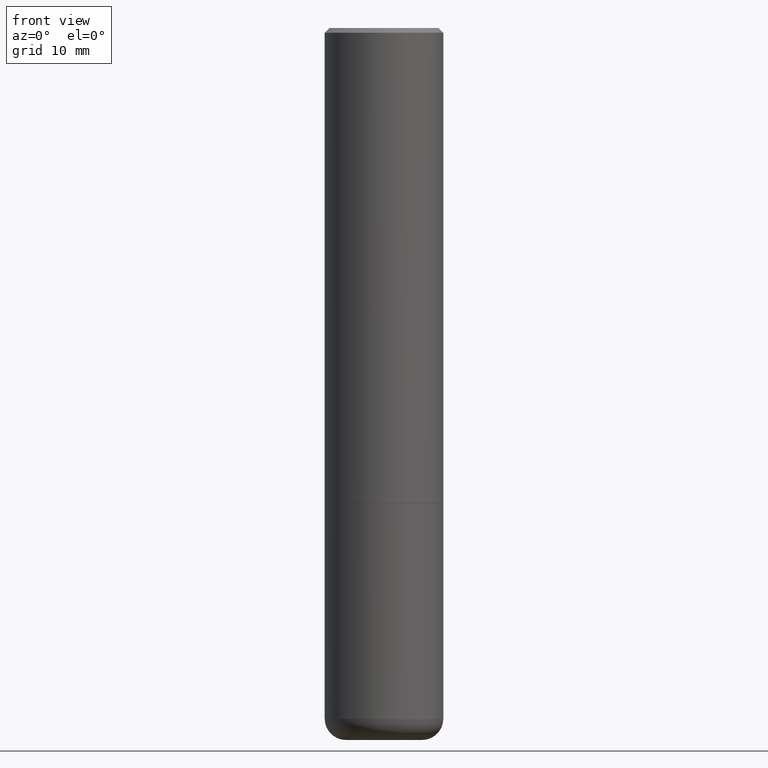
[diagram: clean part render]
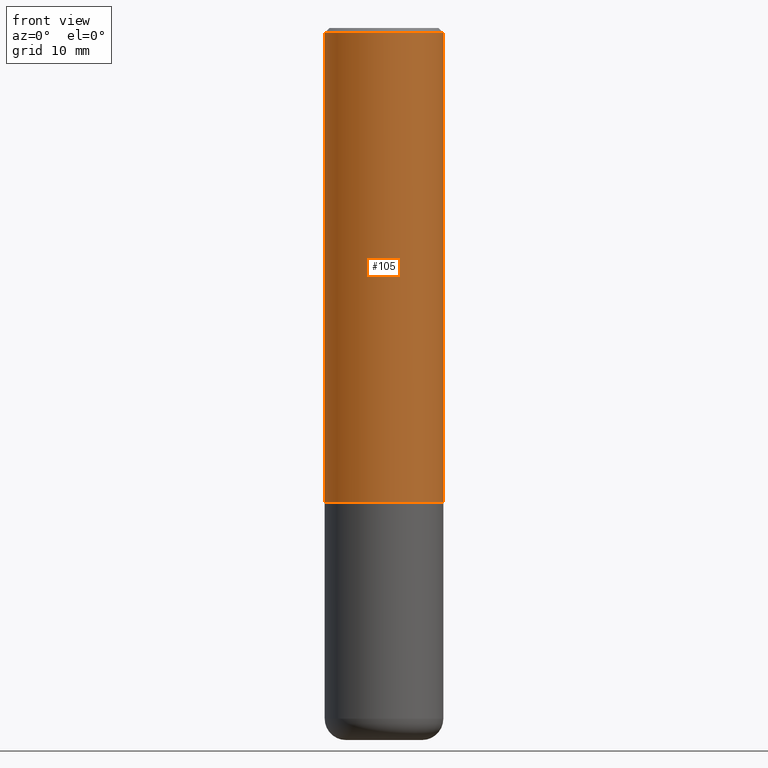
[diagram: same view with one face highlighted and labeled with its STEP entity id]
A machine part, front view. The second image highlights one B-rep face of the part: STEP entity #105.
In plain terms, the highlighted cylindrical surface (partial cylindrical patch) has radius 6.35 mm, axis along (-0, 0, 1).
Its self-contained STEP definition (entity closure, byte-faithful):
#13 = VERTEX_POINT ( 'NONE', #351 ) ;
#36 = DIRECTION ( 'NONE',  ( -2.445468806185136877E-29, 3.491481338843145188E-15, 1.000000000000000000 ) ) ;
#41 = DIRECTION ( 'NONE',  ( 1.000000000000000000, -6.982962677686267499E-15, 4.876176775795936353E-29 ) ) ;
#42 = EDGE_CURVE ( 'NONE', #85, #13, #305, .T. ) ;
#46 = DIRECTION ( 'NONE',  ( -2.445468806185136597E-29, 3.491481338843145583E-15, 1.000000000000000000 ) ) ;
#49 = EDGE_CURVE ( 'NONE', #220, #13, #162, .T. ) ;
#52 = CARTESIAN_POINT ( 'NONE',  ( 4.890937612370287172E-31, -6.982962677686310098E-17, -0.02000000000000005593 ) ) ;
#77 = CIRCLE ( 'NONE', #252, 0.2500000000000002220 ) ;
#85 = VERTEX_POINT ( 'NONE', #301 ) ;
#105 = ADVANCED_FACE ( 'NONE', ( #196 ), #165, .T. ) ;
#108 = EDGE_CURVE ( 'NONE', #181, #220, #296, .T. ) ;
#109 = ORIENTED_EDGE ( 'NONE', *, *, #49, .F. ) ;
#111 = VECTOR ( 'NONE', #204, 39.37007874015748143 ) ;
#137 = CARTESIAN_POINT ( 'NONE',  ( 4.888492143564088712E-29, -6.979471196347448158E-15, -1.999000000000000110 ) ) ;
#150 = CARTESIAN_POINT ( 'NONE',  ( -0.2500000000000002220, -1.748293572161901516E-15, -1.999000000000000110 ) ) ;
#162 = CIRCLE ( 'NONE', #400, 0.2500000000000000000 ) ;
#165 = CYLINDRICAL_SURFACE ( 'NONE', #205, 0.2500000000000001110 ) ;
#169 = ORIENTED_EDGE ( 'NONE', *, *, #108, .F. ) ;
#176 = DIRECTION ( 'NONE',  ( -2.445468806185136597E-29, 3.491481338843145583E-15, 1.000000000000000000 ) ) ;
#181 = VERTEX_POINT ( 'NONE', #150 ) ;
#193 = VECTOR ( 'NONE', #36, 39.37007874015748143 ) ;
#196 = FACE_OUTER_BOUND ( 'NONE', #402, .T. ) ;
#204 = DIRECTION ( 'NONE',  ( -2.445468806185136877E-29, 3.491481338843145188E-15, 1.000000000000000000 ) ) ;
#205 = AXIS2_PLACEMENT_3D ( 'NONE', #331, #46, #41 ) ;
#220 = VERTEX_POINT ( 'NONE', #326 ) ;
#242 = DIRECTION ( 'NONE',  ( -2.445468806185136597E-29, 3.491481338843145583E-15, 1.000000000000000000 ) ) ;
#252 = AXIS2_PLACEMENT_3D ( 'NONE', #137, #242, #412 ) ;
#258 = DIRECTION ( 'NONE',  ( 1.000000000000000000, -6.982962677686266711E-15, 0.000000000000000000 ) ) ;
#273 = ORIENTED_EDGE ( 'NONE', *, *, #339, .T. ) ;
#296 = LINE ( 'NONE', #363, #193 ) ;
#301 = CARTESIAN_POINT ( 'NONE',  ( 0.2500000000000002220, -8.725211865769017202E-15, -1.999000000000000110 ) ) ;
#305 = LINE ( 'NONE', #373, #111 ) ;
#316 = ORIENTED_EDGE ( 'NONE', *, *, #42, .T. ) ;
#326 = CARTESIAN_POINT ( 'NONE',  ( -0.2500000000000000000, 1.675911042644703577E-15, -0.02000000000000005593 ) ) ;
#331 = CARTESIAN_POINT ( 'NONE',  ( 0.000000000000000000, 0.000000000000000000, 0.000000000000000000 ) ) ;
#339 = EDGE_CURVE ( 'NONE', #181, #85, #77, .T. ) ;
#351 = CARTESIAN_POINT ( 'NONE',  ( 0.2500000000000000000, -1.784954126219746189E-15, -0.02000000000000005593 ) ) ;
#363 = CARTESIAN_POINT ( 'NONE',  ( -0.2500000000000001110, 1.776356839400251254E-15, -1.229733772563727146E-29 ) ) ;
#373 = CARTESIAN_POINT ( 'NONE',  ( 0.2500000000000001110, -1.745740669421567664E-15, 1.219044193948984649E-29 ) ) ;
#400 = AXIS2_PLACEMENT_3D ( 'NONE', #52, #176, #258 ) ;
#402 = EDGE_LOOP ( 'NONE', ( #169, #273, #316, #109 ) ) ;
#412 = DIRECTION ( 'NONE',  ( 1.000000000000000000, -6.982962677686268288E-15, 0.000000000000000000 ) ) ;